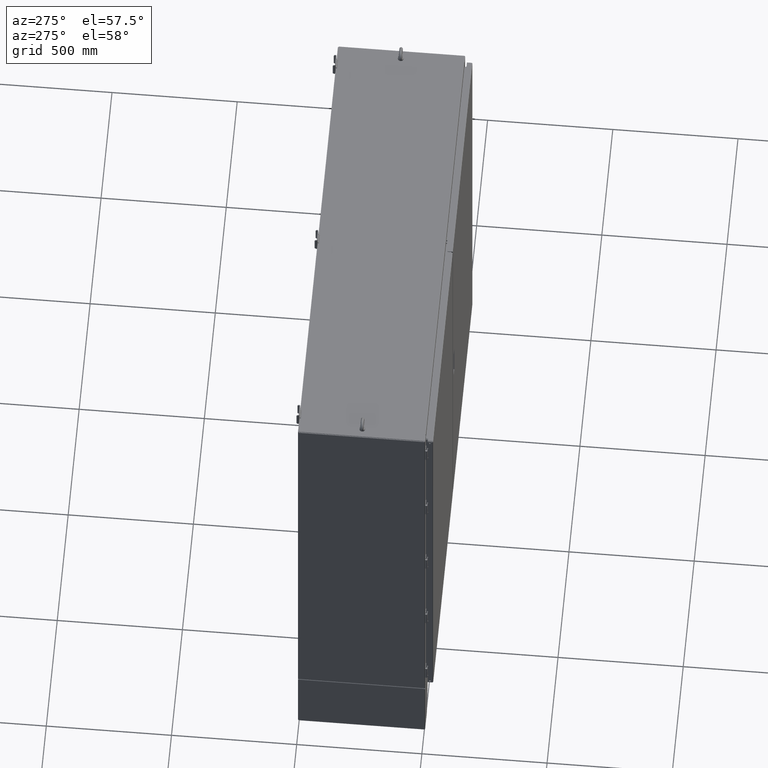
[diagram: clean part render]
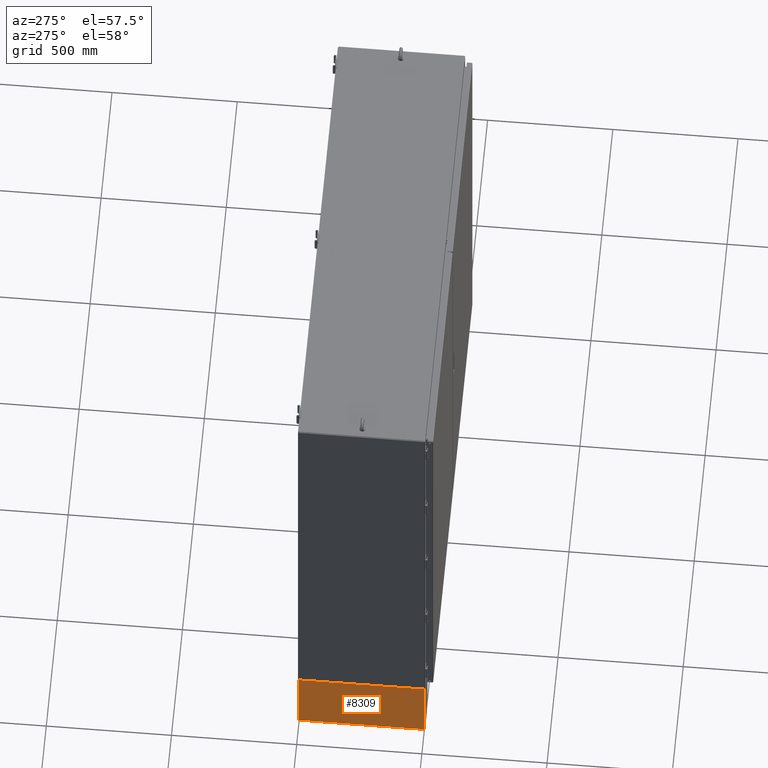
[diagram: same view with one face highlighted and labeled with its STEP entity id]
A machine part, auxiliary view. The second image highlights one B-rep face of the part: STEP entity #8309.
In plain terms, the highlighted planar face has unit normal (-1, 0, -0).
Its self-contained STEP definition (entity closure, byte-faithful):
#8309 = ADVANCED_FACE( '', ( #17343 ), #17344, .T. );
#17343 = FACE_OUTER_BOUND( '', #35492, .T. );
#17344 = PLANE( '', #35493 );
#35492 = EDGE_LOOP( '', ( #64372, #64373, #64374, #64375 ) );
#35493 = AXIS2_PLACEMENT_3D( '', #64376, #64377, #64378 );
#64372 = ORIENTED_EDGE( '', *, *, #81063, .T. );
#64373 = ORIENTED_EDGE( '', *, *, #74390, .T. );
#64374 = ORIENTED_EDGE( '', *, *, #81064, .T. );
#64375 = ORIENTED_EDGE( '', *, *, #74004, .T. );
#64376 = CARTESIAN_POINT( '', ( 0.000000000000000, 0.000000000000000, 0.000000000000000 ) );
#64377 = DIRECTION( '', ( 0.000000000000000, -1.00000000000000, 0.000000000000000 ) );
#64378 = DIRECTION( '', ( 0.000000000000000, 0.000000000000000, -1.00000000000000 ) );
#74004 = EDGE_CURVE( '', #84647, #84650, #84652, .T. );
#74390 = EDGE_CURVE( '', #85318, #82771, #85319, .T. );
#81063 = EDGE_CURVE( '', #84650, #85318, #95080, .T. );
#81064 = EDGE_CURVE( '', #82771, #84647, #95081, .T. );
#82771 = VERTEX_POINT( '', #97505 );
#84647 = VERTEX_POINT( '', #102463 );
#84650 = VERTEX_POINT( '', #102467 );
#84652 = LINE( '', #102469, #102470 );
#85318 = VERTEX_POINT( '', #104324 );
#85319 = LINE( '', #104325, #104326 );
#95080 = LINE( '', #131916, #131917 );
#95081 = LINE( '', #131918, #131919 );
#97505 = CARTESIAN_POINT( '', ( 250.520200000000, 0.000000000000000, 148.920200000000 ) );
#102463 = CARTESIAN_POINT( '', ( -250.520200000000, 0.000000000000000, 148.920200000000 ) );
#102467 = CARTESIAN_POINT( '', ( -250.520200000000, 0.000000000000000, -148.920200000000 ) );
#102469 = CARTESIAN_POINT( '', ( -250.520200000000, 0.000000000000000, 152.400000000000 ) );
#102470 = VECTOR( '', #136310, 1000.00000000000 );
#104324 = CARTESIAN_POINT( '', ( 250.520200000000, 0.000000000000000, -148.920200000000 ) );
#104325 = CARTESIAN_POINT( '', ( 250.520200000000, 0.000000000000000, -152.400000000000 ) );
#104326 = VECTOR( '', #136543, 1000.00000000000 );
#131916 = CARTESIAN_POINT( '', ( 250.520200000000, 0.000000000000000, -148.920200000000 ) );
#131917 = VECTOR( '', #140181, 1000.00000000000 );
#131918 = CARTESIAN_POINT( '', ( -250.520200000000, 0.000000000000000, 148.920200000000 ) );
#131919 = VECTOR( '', #140182, 1000.00000000000 );
#136310 = DIRECTION( '', ( 0.000000000000000, 0.000000000000000, -1.00000000000000 ) );
#136543 = DIRECTION( '', ( 0.000000000000000, 0.000000000000000, 1.00000000000000 ) );
#140181 = DIRECTION( '', ( 1.00000000000000, 0.000000000000000, 0.000000000000000 ) );
#140182 = DIRECTION( '', ( -1.00000000000000, 0.000000000000000, 0.000000000000000 ) );